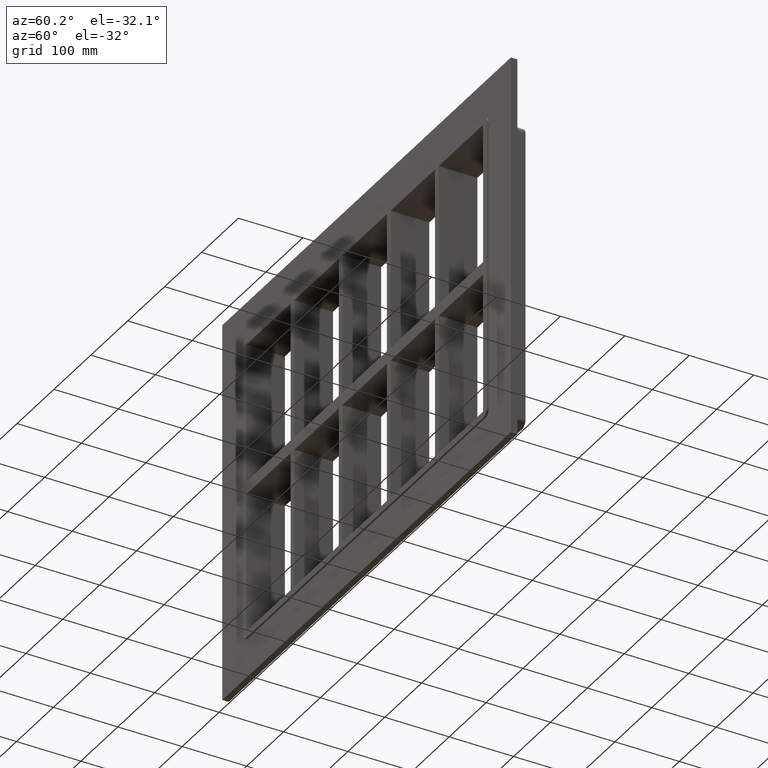
[diagram: clean part render]
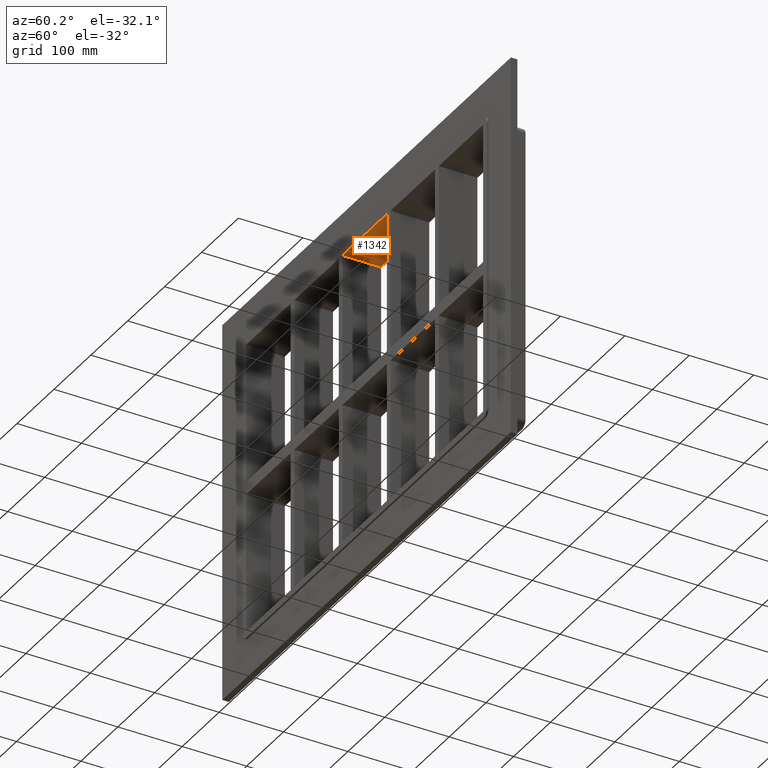
[diagram: same view with one face highlighted and labeled with its STEP entity id]
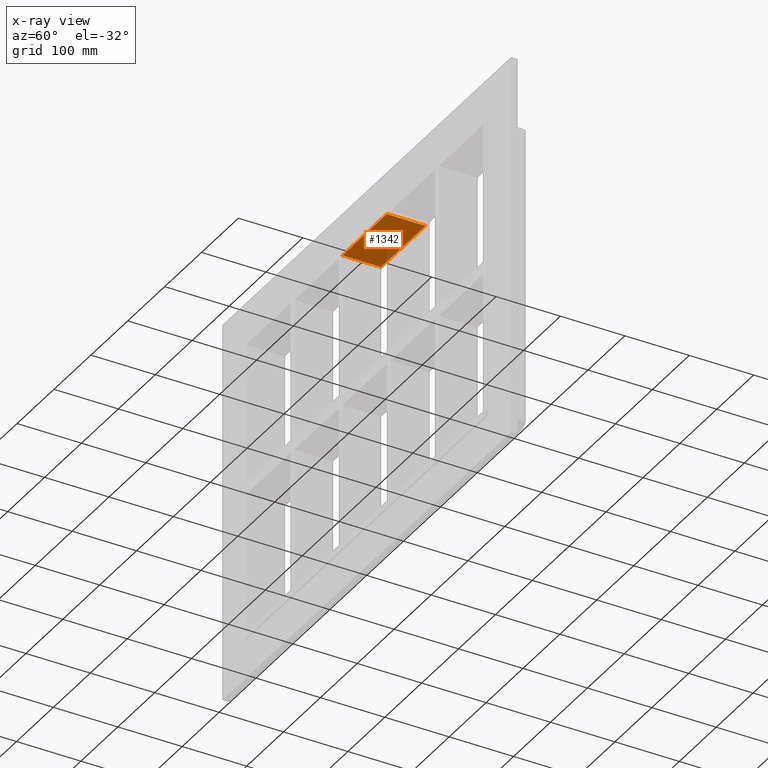
[diagram: x-ray of the same camera — body ghosted, the highlighted face saturated]
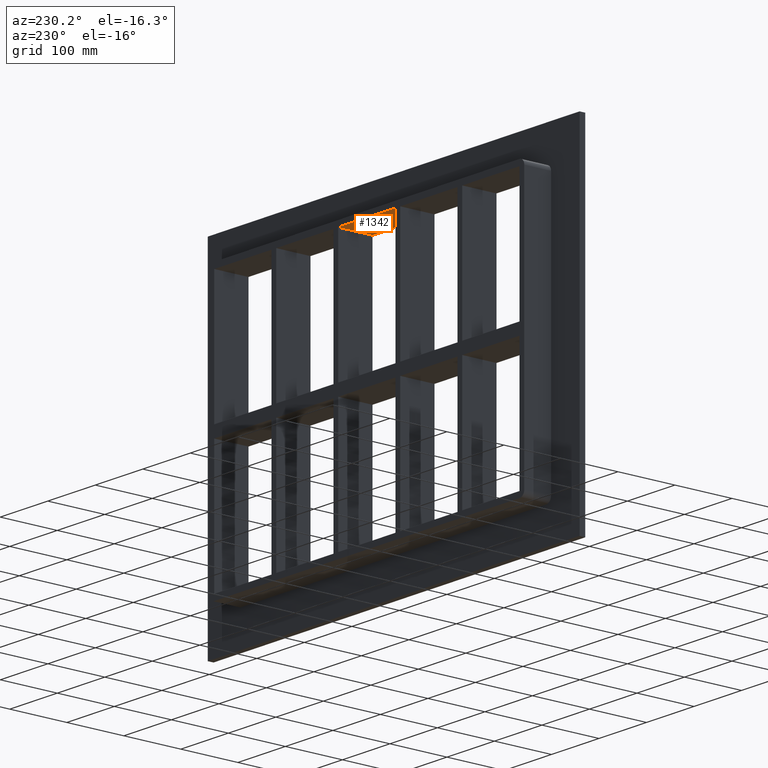
[diagram: same view with one face highlighted and labeled with its STEP entity id]
A machine part, auxiliary view. The second image highlights one B-rep face of the part: STEP entity #1342.
The next image is the same camera in x-ray: the body ghosted, the highlighted face saturated — about 6% of this face is hidden behind the body in this view.
A second angle (auxiliary view) of the same face is appended — the face is thin or edge-on in the first view.
In plain terms, the highlighted planar face has unit normal (0, 0, 1).
Its self-contained STEP definition (entity closure, byte-faithful):
#243=CARTESIAN_POINT('',(60.249999999998636,-3.0,227.99999999999997));
#244=VERTEX_POINT('',#243);
#251=CARTESIAN_POINT('',(60.249999999998636,57.0,227.99999999999997));
#252=VERTEX_POINT('',#251);
#253=CARTESIAN_POINT('',(60.249999999998636,57.000000000000007,228.0));
#254=DIRECTION('',(0.0,-1.0,0.0));
#255=VECTOR('',#254,60.000000000000007);
#256=LINE('',#253,#255);
#257=EDGE_CURVE('',#252,#244,#256,.T.);
#483=CARTESIAN_POINT('',(-60.250000000007269,57.0,227.99999999999997));
#484=VERTEX_POINT('',#483);
#491=CARTESIAN_POINT('',(-60.250000000007269,-3.0,227.99999999999997));
#492=VERTEX_POINT('',#491);
#493=CARTESIAN_POINT('',(-60.25000000000729,-3.0,228.0));
#494=DIRECTION('',(0.0,1.0,0.0));
#495=VECTOR('',#494,60.000000000000007);
#496=LINE('',#493,#495);
#497=EDGE_CURVE('',#492,#484,#496,.T.);
#774=CARTESIAN_POINT('',(-60.250000000007276,-3.0,228.0));
#775=DIRECTION('',(1.0,0.0,0.0));
#776=VECTOR('',#775,120.50000000000591);
#777=LINE('',#774,#776);
#778=EDGE_CURVE('',#492,#244,#777,.T.);
#1148=CARTESIAN_POINT('',(60.249999999998636,57.0,228.0));
#1149=DIRECTION('',(-1.0,0.0,0.0));
#1150=VECTOR('',#1149,120.50000000000591);
#1151=LINE('',#1148,#1150);
#1152=EDGE_CURVE('',#252,#484,#1151,.T.);
#1331=CARTESIAN_POINT('',(-321.25,0.0,228.0));
#1332=DIRECTION('',(0.0,0.0,1.0));
#1333=DIRECTION('',(1.0,0.0,0.0));
#1334=AXIS2_PLACEMENT_3D('',#1331,#1332,#1333);
#1335=PLANE('',#1334);
#1336=ORIENTED_EDGE('',*,*,#257,.T.);
#1337=ORIENTED_EDGE('',*,*,#778,.F.);
#1338=ORIENTED_EDGE('',*,*,#497,.T.);
#1339=ORIENTED_EDGE('',*,*,#1152,.F.);
#1340=EDGE_LOOP('',(#1336,#1337,#1338,#1339));
#1341=FACE_OUTER_BOUND('',#1340,.T.);
#1342=ADVANCED_FACE('',(#1341),#1335,.F.);